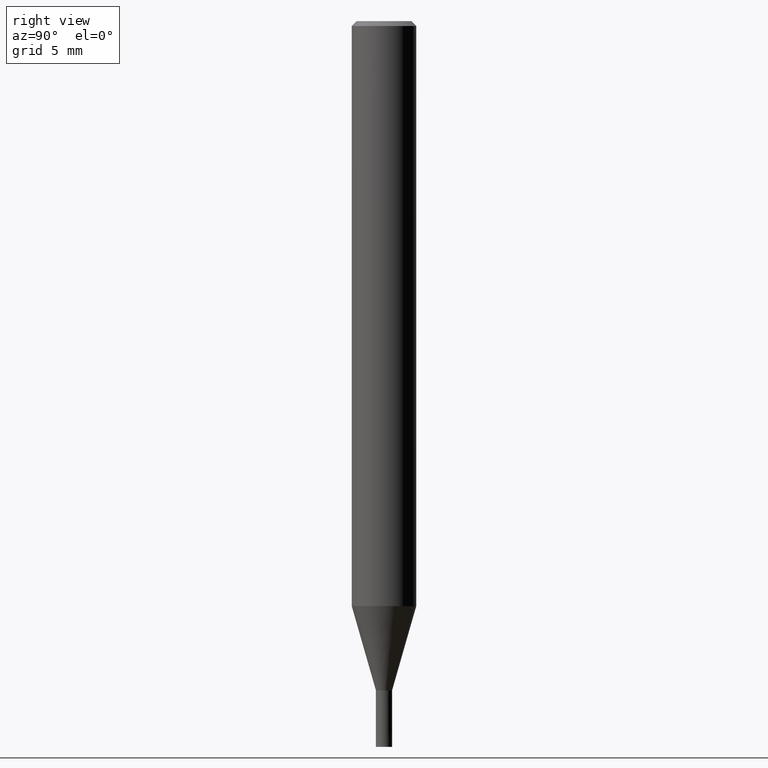
[diagram: clean part render]
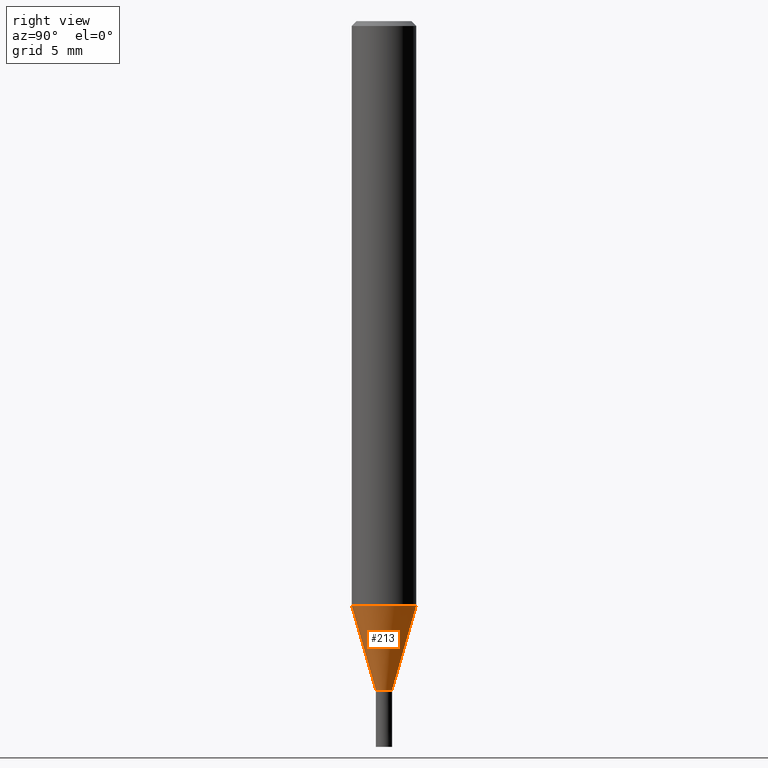
[diagram: same view with one face highlighted and labeled with its STEP entity id]
A machine part, right view. The second image highlights one B-rep face of the part: STEP entity #213.
In plain terms, the highlighted conical surface has half-angle 16 deg.
Its self-contained STEP definition (entity closure, byte-faithful):
#115=VERTEX_POINT('',#287);
#139=EDGE_CURVE('',#169,#157,#313,.T.);
#157=VERTEX_POINT('',#333);
#169=VERTEX_POINT('',#346);
#181=EDGE_CURVE('',#157,#115,#361,.T.);
#197=EDGE_CURVE('',#217,#115,#381,.T.);
#213=ADVANCED_FACE('',(#400),#401,.T.);
#217=VERTEX_POINT('',#406);
#229=EDGE_CURVE('',#217,#169,#420,.T.);
#287=CARTESIAN_POINT('',(2.44915147732706E-016,-1.99995,-36.269));
#313=CIRCLE('',#504,0.49995);
#333=CARTESIAN_POINT('',(6.12241946593498E-017,-0.49995,-41.5));
#346=CARTESIAN_POINT('',(0.0,0.49995,-41.5));
#361=LINE('',#562,#563);
#381=CIRCLE('',#589,1.99995);
#400=FACE_OUTER_BOUND('',#612,.T.);
#401=CONICAL_SURFACE('',#613,1.24995,0.279258842899557);
#406=CARTESIAN_POINT('',(0.0,1.99995,-36.269));
#420=LINE('',#636,#637);
#504=AXIS2_PLACEMENT_3D('',#720,#721,#722);
#562=CARTESIAN_POINT('',(1.53069671196028E-016,-1.24995,-38.8845));
#563=VECTOR('',#775,1.0);
#589=AXIS2_PLACEMENT_3D('',#805,#806,#807);
#612=EDGE_LOOP('',(#832,#833,#834,#835));
#613=AXIS2_PLACEMENT_3D('',#836,#837,#838);
#636=CARTESIAN_POINT('',(-1.53069671196028E-016,1.24995,-38.8845));
#637=VECTOR('',#858,1.0);
#720=CARTESIAN_POINT('',(0.0,0.0,-41.5));
#721=DIRECTION('',(0.0,0.0,-1.0));
#722=DIRECTION('',(0.0,1.0,0.0));
#775=DIRECTION('',(3.37554511665357E-017,-0.275643279664314,0.961259997282682));
#805=CARTESIAN_POINT('',(0.0,0.0,-36.269));
#806=DIRECTION('',(0.0,0.0,-1.0));
#807=DIRECTION('',(0.0,1.0,0.0));
#832=ORIENTED_EDGE('',*,*,#229,.F.);
#833=ORIENTED_EDGE('',*,*,#197,.T.);
#834=ORIENTED_EDGE('',*,*,#181,.F.);
#835=ORIENTED_EDGE('',*,*,#139,.F.);
#836=CARTESIAN_POINT('',(0.0,0.0,-38.8845));
#837=DIRECTION('',(-0.0,-0.0,1.0));
#838=DIRECTION('',(0.0,1.0,0.0));
#858=DIRECTION('',(3.37554511665357E-017,-0.275643279664314,-0.961259997282682));